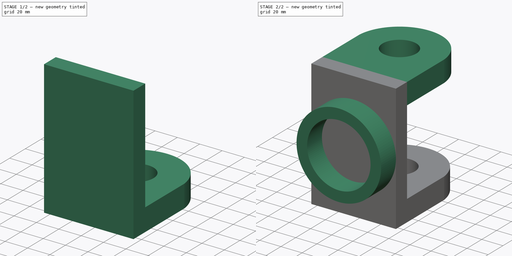
[diagram: build sequence overview — one tinted view per stage of 2, left to right]
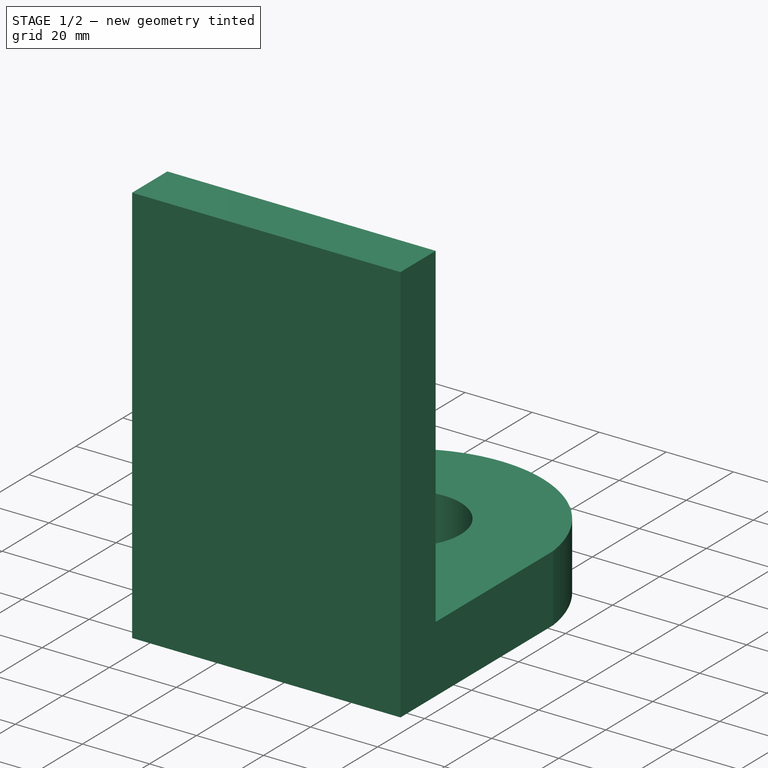
[diagram: stage 1 of 2 — iso view after this stage's code; geometry added in this stage tinted green]
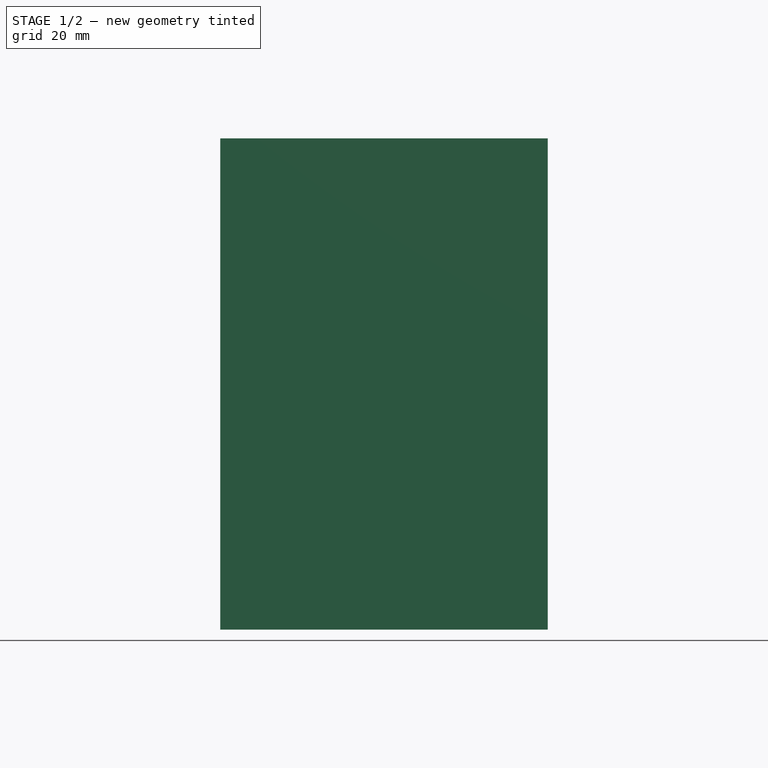
[diagram: stage 1 of 2 — front view after this stage's code; geometry added in this stage tinted green]
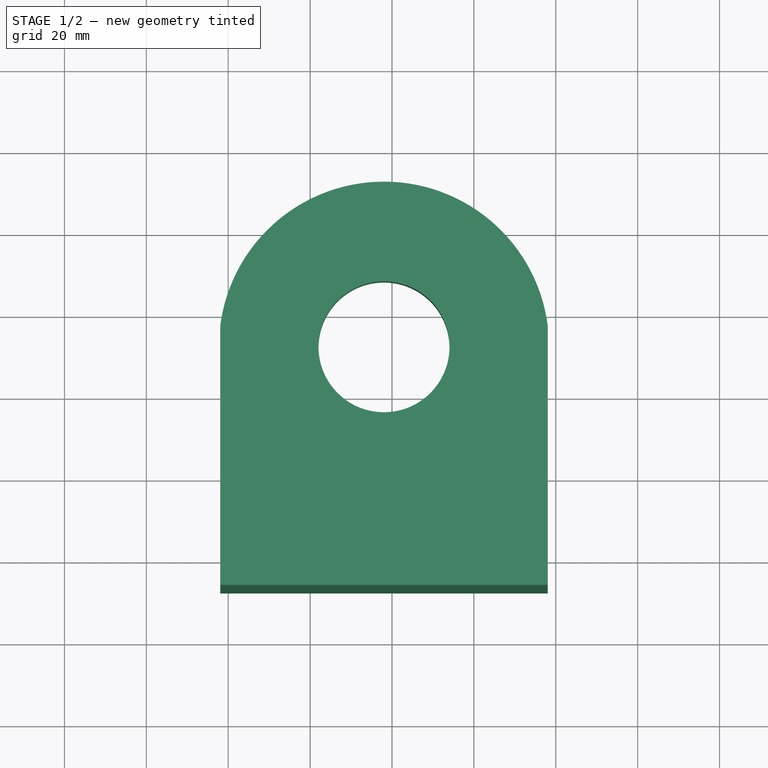
[diagram: stage 1 of 2 — top view after this stage's code; geometry added in this stage tinted green]
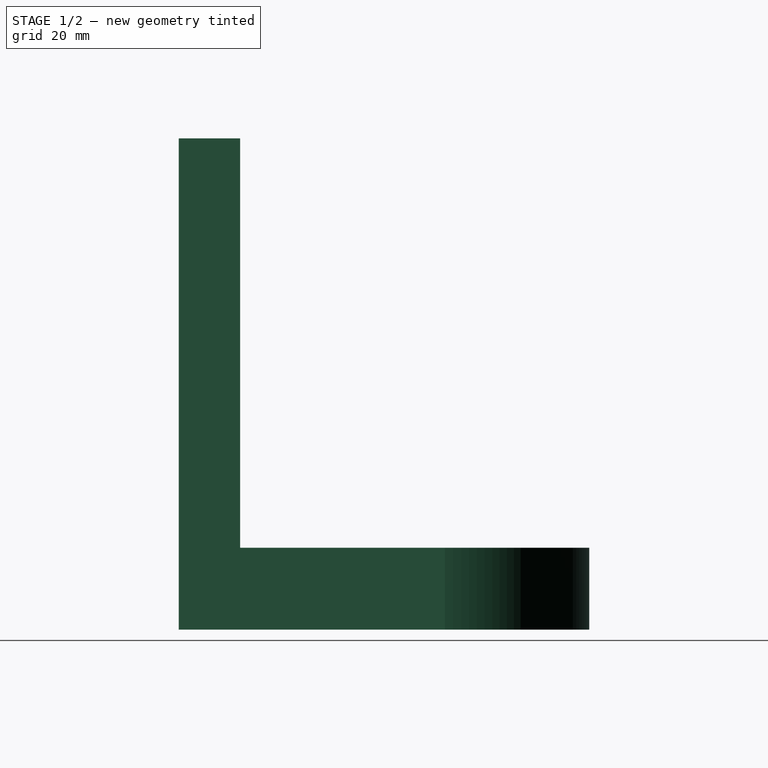
[diagram: stage 1 of 2 — right view after this stage's code; geometry added in this stage tinted green]
FCSTD DOCUMENT  (FreeCAD 0.18R4 (GitTag))
Label: Set 3
License: All rights reserved
LicenseURL: http://en.wikipedia.org/wiki/All_rights_reserved
objects: Sketcher::SketchObject×4, PartDesign::Pad×4, PartDesign::Body×1
note: 13 computed .brp shape members not serialized (recipe doc carries the construction recipe); baked Part::Feature solids carry a one-line shape summary decoded from their .brp

FEATURE [Sketcher::SketchObject] Sketch
  MapMode = 5
  Placement = pos=(0,0,0) rot=(1,0,0;1.5708rad)
  Support = -> [XZ_Plane]
  sketch-geometry (4):
    g0: LineSegment StartX=-41.9503 StartY=85.4537 StartZ=0 EndX=38.0497 EndY=85.4537 EndZ=0
    g1: LineSegment StartX=38.0497 StartY=85.4537 StartZ=0 EndX=38.0497 EndY=-34.5463 EndZ=0
    g2: LineSegment StartX=38.0497 StartY=-34.5463 StartZ=0 EndX=-41.9503 EndY=-34.5463 EndZ=0
    g3: LineSegment StartX=-41.9503 StartY=-34.5463 StartZ=0 EndX=-41.9503 EndY=85.4537 EndZ=0
  constraints (10):
    c: Coincident(g0,g1)
    c: Coincident(g1,g2)
    c: Coincident(g2,g3)
    c: Coincident(g3,g0)
    c: Horizontal(g0)
    c: Horizontal(g2)
    c: Vertical(g1)
    c: Vertical(g3)
    c: DistanceX(g2,g2) = 80
    c: DistanceY(g3,g3) = 120
FEATURE [PartDesign::Pad] Pad
  Length = 15
  Length2 = 100
  Midplane = true
  Placement = pos=(0,0,0) rot=(1,0,0;1.5708rad)
  Profile = -> Sketch
  Type = 0
FEATURE [Sketcher::SketchObject] Sketch001
  ExternalGeometry = -> [Pad]
  MapMode = 5
  Placement = pos=(0,-2.3e-14,-34.5463) rot=(1,0,0;3.14159rad)
  Support = -> [Pad]
  sketch-geometry (5):
    g0: LineSegment StartX=-41.9503 StartY=-7.5 StartZ=0 EndX=38.0497 EndY=-7.5 EndZ=0
    g1: LineSegment StartX=38.0497 StartY=-7.5 StartZ=0 EndX=38.0497 EndY=-57.5 EndZ=0
    g2: LineSegment StartX=-41.9503 StartY=-7.5 StartZ=0 EndX=-41.9503 EndY=-57.5 EndZ=0
    g3: Circle CenterX=-1.95033 CenterY=-52.4315 CenterZ=0 NormalX=0 NormalY=0 NormalZ=1 AngleXU=0 Radius=16
    g4: ArcOfCircle CenterX=-1.95033 CenterY=-52.4315 CenterZ=0 NormalX=0 NormalY=0 NormalZ=1 AngleXU=0 Radius=40.3198 StartAngle=3.26763 EndAngle=6.15714
  constraints (12):
    c: Coincident(g0,g1)
    c: Coincident(g2,g0)
    c: Coincident(g0,g-3)
    c: Coincident(g0,g-3)
    c: Parallel(g2,g-2)
    c: Parallel(g1,g-2)
    c: DistanceY(g1,g1) = 50
    c: Radius(g3) = 16
    c: DistanceY(g2,g2) = 50
    c: Coincident(g4,g1)
    c: Coincident(g4,g2)
    c: Coincident(g3,g4)
FEATURE [PartDesign::Pad] Pad001
  BaseFeature = -> Pad
  Length = 20
  Length2 = 100
  Placement = pos=(0,0,0) rot=(1,0,0;1.5708rad)
  Profile = -> Sketch001
  Reversed = true
  Type = 0
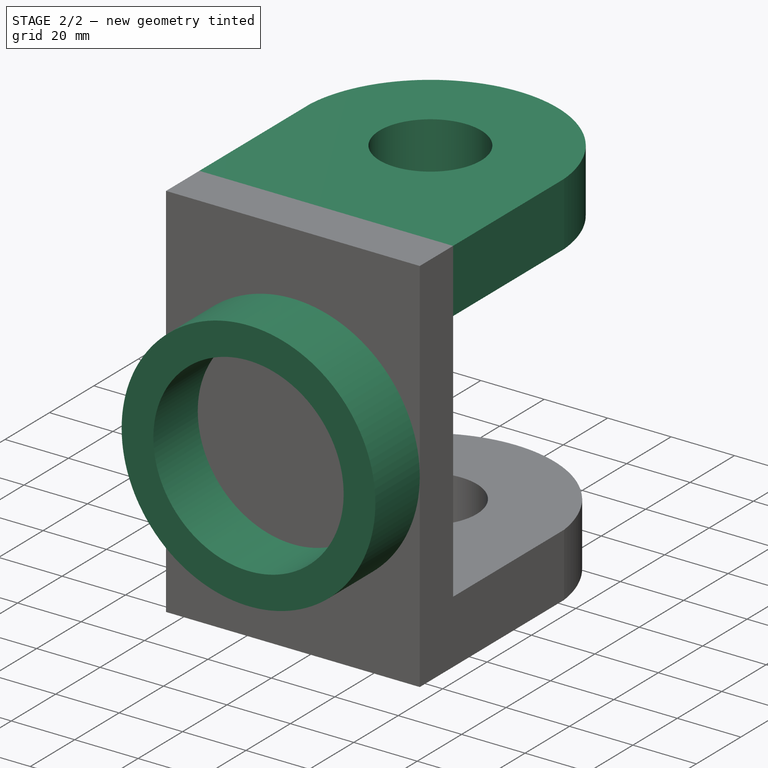
[diagram: stage 2 of 2 — iso view after this stage's code; geometry added in this stage tinted green]
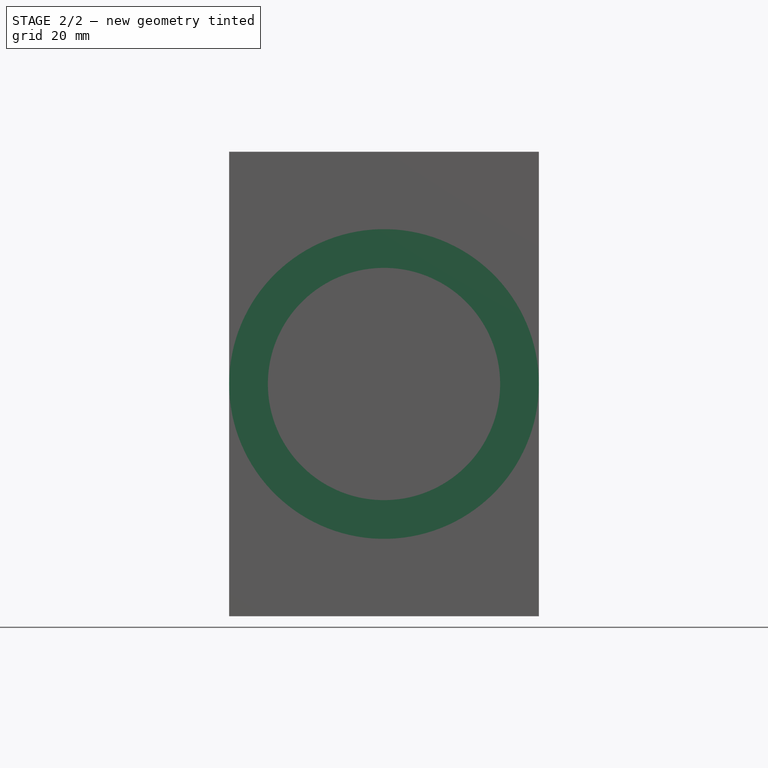
[diagram: stage 2 of 2 — front view after this stage's code; geometry added in this stage tinted green]
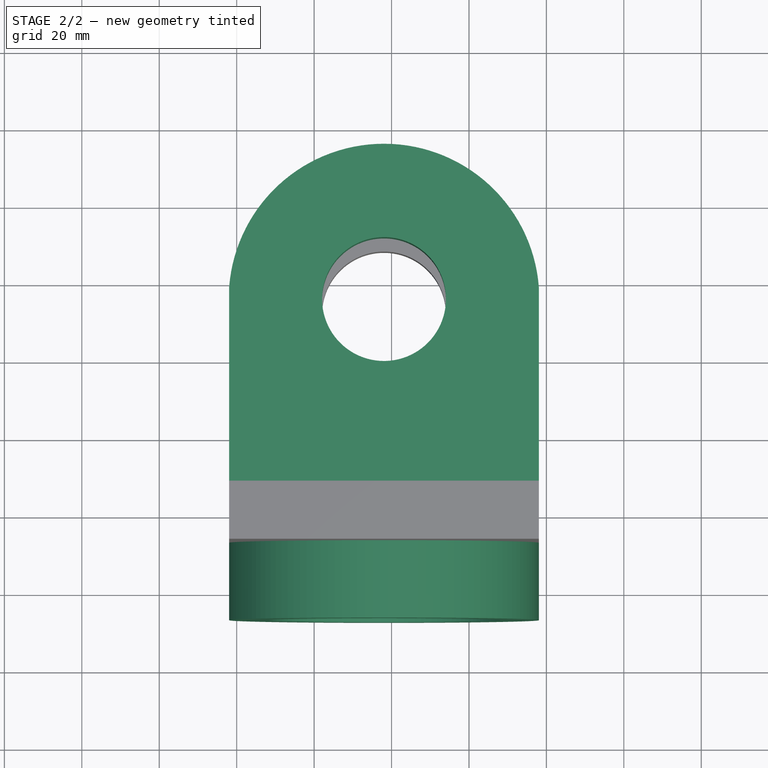
[diagram: stage 2 of 2 — top view after this stage's code; geometry added in this stage tinted green]
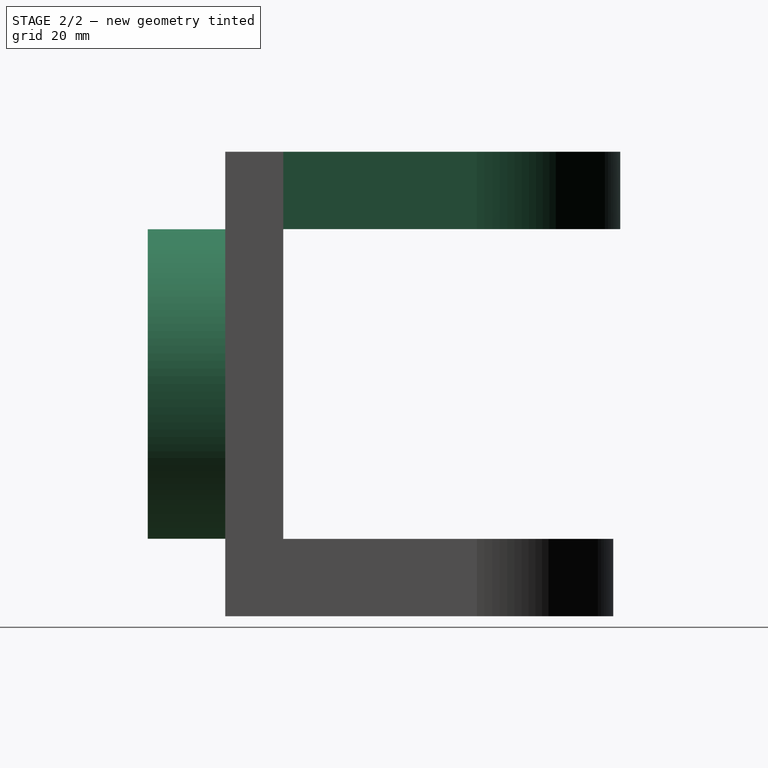
[diagram: stage 2 of 2 — right view after this stage's code; geometry added in this stage tinted green]
FEATURE [Sketcher::SketchObject] Sketch002
  ExternalGeometry = -> [Pad001]
  MapMode = 5
  Placement = pos=(0,9.49e-14,85.4537) rot=(0,0,1;3.14159rad)
  Support = -> [Pad001]
  sketch-geometry (5):
    g0: LineSegment StartX=-38.0497 StartY=-57.5 StartZ=0 EndX=-38.0497 EndY=-7.5 EndZ=0
    g1: LineSegment StartX=-38.0497 StartY=-7.5 StartZ=0 EndX=41.9503 EndY=-7.5 EndZ=0
    g2: LineSegment StartX=41.9503 StartY=-7.5 StartZ=0 EndX=41.9503 EndY=-57.5 EndZ=0
    g3: Circle CenterX=1.95033 CenterY=-54.4236 CenterZ=0 NormalX=0 NormalY=0 NormalZ=1 AngleXU=0 Radius=16
    g4: ArcOfCircle CenterX=1.95033 CenterY=-54.4236 CenterZ=0 NormalX=0 NormalY=0 NormalZ=1 AngleXU=0 Radius=40.1181 StartAngle=3.21835 EndAngle=6.20643
  constraints (12):
    c: Coincident(g0,g1)
    c: Coincident(g1,g2)
    c: Coincident(g1,g-3)
    c: Coincident(g0,g-3)
    c: Parallel(g0,g-2)
    c: Parallel(g2,g-2)
    c: DistanceY(g0,g0) = 50
    c: DistanceY(g2,g2) = 50
    c: Radius(g3) = 16
    c: Coincident(g4,g0)
    c: Coincident(g4,g2)
    c: Coincident(g4,g3)
FEATURE [PartDesign::Pad] Pad002
  BaseFeature = -> Pad001
  Length = 20
  Length2 = 100
  Placement = pos=(0,0,0) rot=(1,0,0;1.5708rad)
  Profile = -> Sketch002
  Reversed = true
  Type = 0
FEATURE [Sketcher::SketchObject] Sketch003
  ExternalGeometry = -> [Pad002]
  MapMode = 5
  Placement = pos=(0,-7.5,1.17e-14) rot=(1,0,0;1.5708rad)
  Support = -> [Pad002]
  sketch-geometry (2):
    g0: Circle CenterX=-1.95033 CenterY=25.4537 CenterZ=0 NormalX=0 NormalY=0 NormalZ=1 AngleXU=0 Radius=40
    g1: Circle CenterX=-1.95033 CenterY=25.4537 CenterZ=0 NormalX=0 NormalY=0 NormalZ=1 AngleXU=0 Radius=30
  constraints (5):
    c: Radius(g0) = 40
    c: DistanceX(g0,g-3) = 40
    c: DistanceY(g-3,g0) = 60
    c: Coincident(g1,g0)
    c: Radius(g1) = 30
FEATURE [PartDesign::Pad] Pad003
  BaseFeature = -> Pad002
  Length = 20
  Length2 = 100
  Placement = pos=(0,0,0) rot=(1,0,0;1.5708rad)
  Profile = -> Sketch003
  Type = 0
FEATURE [PartDesign::Body] Body
  Group = -> [Sketch,Pad,Sketch001,Pad001,Sketch002,Pad002,Sketch003,Pad003]
  Origin = -> Origin
  Tip = -> Pad003
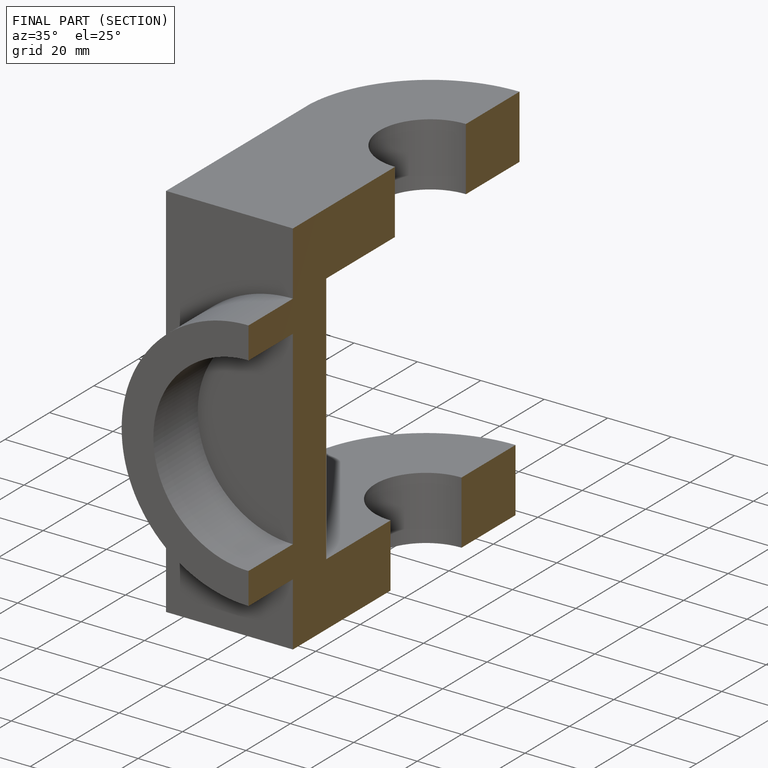
[diagram: finished part — half-section view (interior)]
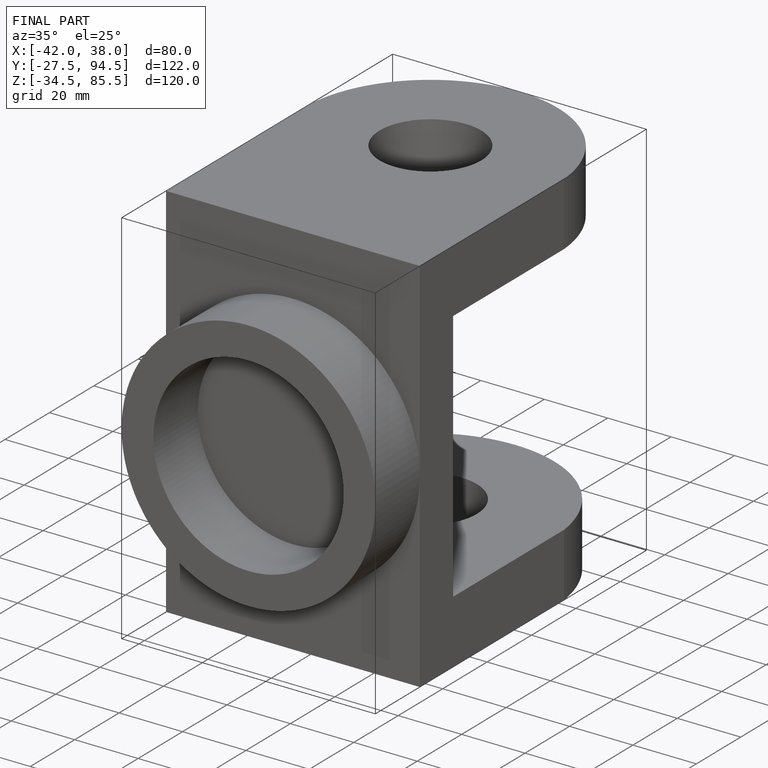
[diagram: finished part — iso view with bounding-box wireframe]
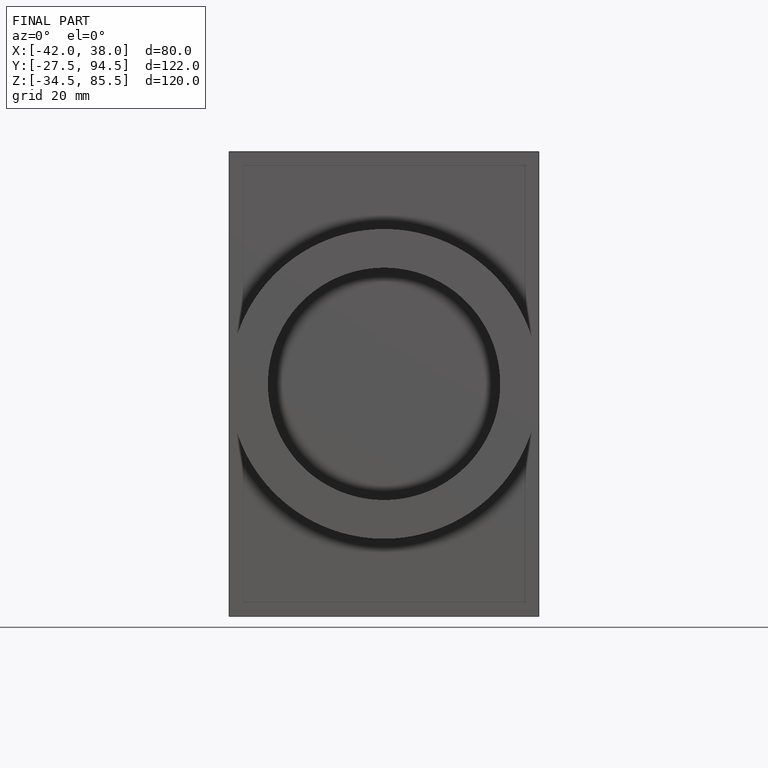
[diagram: finished part — front view with bounding-box wireframe]
